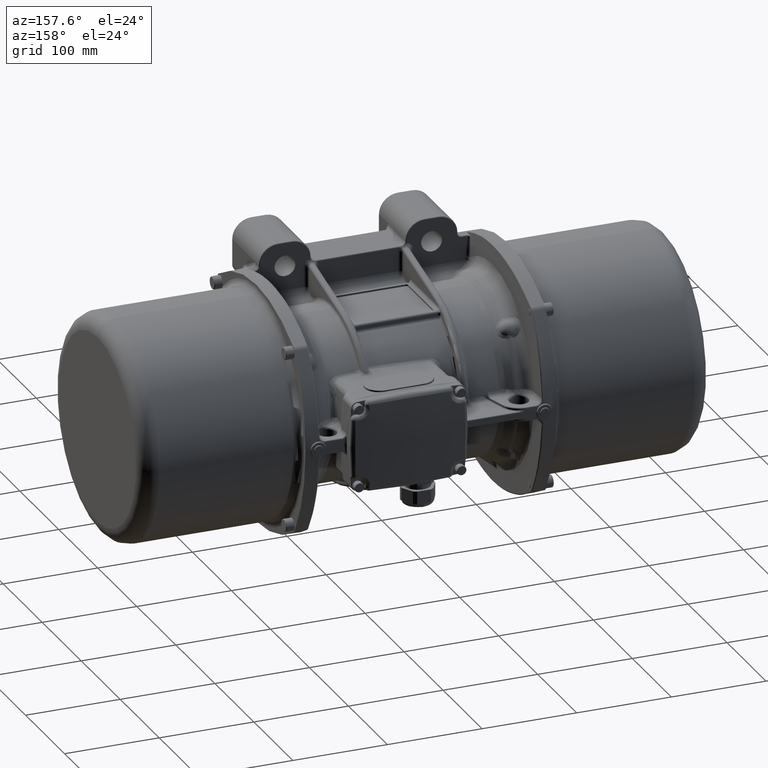
[diagram: clean part render]
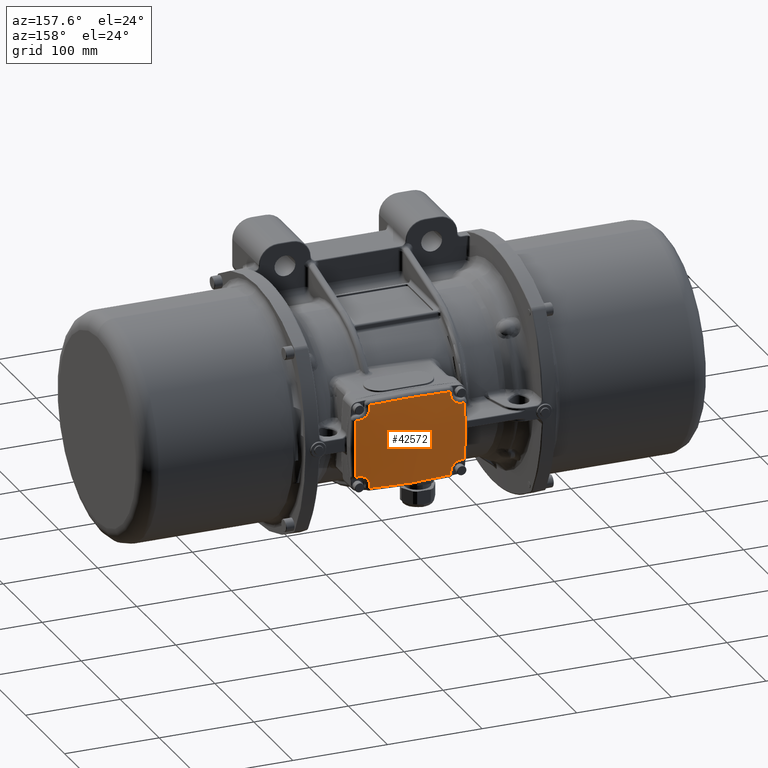
[diagram: same view with one face highlighted and labeled with its STEP entity id]
A machine part, auxiliary view. The second image highlights one B-rep face of the part: STEP entity #42572.
In plain terms, the highlighted face is a freeform B-spline surface patch.
Its self-contained STEP definition (entity closure, byte-faithful):
#1090 = CARTESIAN_POINT ( 'NONE',  ( 73.03838904859841800, 140.2037965762747800, -34.05170469325268800 ) ) ;
#1297 = CARTESIAN_POINT ( 'NONE',  ( 85.68355796375533400, 140.0805562841767100, -8.788626689223152200 ) ) ;
#1487 = B_SPLINE_CURVE_WITH_KNOTS ( 'NONE', 3,
 ( #110804, #30832, #86555, #86055, #131299, #120866 ),
 .UNSPECIFIED., .F., .F.,
 ( 4, 2, 4 ),
 ( 0.0000000000000000000, 0.5000000000000000000, 1.000000000000000000 ),
 .UNSPECIFIED. ) ;
#2481 = CARTESIAN_POINT ( 'NONE',  ( -15.80098126488393700, 140.1579850047789100, -37.95820585746592000 ) ) ;
#2756 = CARTESIAN_POINT ( 'NONE',  ( 85.76013078117621500, 140.1123290917668100, -0.03433041169761991100 ) ) ;
#3235 = CARTESIAN_POINT ( 'NONE',  ( 85.76117192795932500, 140.1127468494036100, 2.331891089218814700 ) ) ;
#4633 = CARTESIAN_POINT ( 'NONE',  ( 71.36146692850643100, 140.1888856636690300, 36.56007688958355600 ) ) ;
#4989 = CARTESIAN_POINT ( 'NONE',  ( 70.18973263400020800, 140.0223227000046200, -41.68482550000020100 ) ) ;
#5131 = CARTESIAN_POINT ( 'NONE',  ( 78.02888587741952600, 140.0558416957679000, 30.73962110632014300 ) ) ;
#7294 = CARTESIAN_POINT ( 'NONE',  ( 70.18970175622136800, 139.9794459508754000, -42.61075927379555100 ) ) ;
#7507 = CIRCLE ( 'NONE', #42358, 899.4965945855613000 ) ;
#8100 = CARTESIAN_POINT ( 'NONE',  ( -18.03835192232527600, 140.2037971372662900, 34.05174674389732600 ) ) ;
#9048 = CARTESIAN_POINT ( 'NONE',  ( -19.10490507970405700, 140.1888088693053500, 32.98485351912680800 ) ) ;
#9646 = CARTESIAN_POINT ( 'NONE',  ( -15.18973541417200000, 140.0223226999723900, 41.68482763699870500 ) ) ;
#9797 = CARTESIAN_POINT ( 'NONE',  ( -30.76019499328634800, 140.1123256498623800, -0.7175420265384963000 ) ) ;
#10793 = CARTESIAN_POINT ( 'NONE',  ( -30.06350219383276500, 139.8210757524552400, 25.11107674537006700 ) ) ;
#11773 = CARTESIAN_POINT ( 'NONE',  ( -30.49912549658229800, 140.0032903239625700, -15.06025973047050000 ) ) ;
#11863 = DIRECTION ( 'NONE',  ( -0.9999999999999997800, -3.117769847139052300E-013, 2.300745983480335900E-008 ) ) ;
#11987 = CARTESIAN_POINT ( 'NONE',  ( 79.85236985144487700, 139.9666296573888900, -30.28823940202165900 ) ) ;
#12669 = CARTESIAN_POINT ( 'NONE',  ( 85.76013463420238700, 140.1123294013266600, -0.0007010029472015470600 ) ) ;
#12738 = CARTESIAN_POINT ( 'NONE',  ( -30.50093468737462000, 140.0040467198113800, -15.00799043343167000 ) ) ;
#13166 = CARTESIAN_POINT ( 'NONE',  ( 85.76010516828907300, 140.1123223515053000, -0.1373208510173062900 ) ) ;
#13695 = B_SPLINE_CURVE_WITH_KNOTS ( 'NONE', 3,
 ( #93609, #104524, #69260, #115970 ),
 .UNSPECIFIED., .F., .F.,
 ( 4, 4 ),
 ( 0.0000000000000000000, 1.000000000000000000 ),
 .UNSPECIFIED. ) ;
#14273 = CARTESIAN_POINT ( 'NONE',  ( 55.96065566999010300, 140.5249769485937700, -45.29115661843946600 ) ) ;
#14648 = CARTESIAN_POINT ( 'NONE',  ( 85.50697881213923800, 140.0065748092918100, 14.83215066699380800 ) ) ;
#14782 = CARTESIAN_POINT ( 'NONE',  ( 13.26932056593490300, 140.8415902245682800, -45.70296511460249200 ) ) ;
#14874 = CARTESIAN_POINT ( 'NONE',  ( -22.67368734587941900, 140.0714077311849900, -30.86673935067014800 ) ) ;
#15084 = CARTESIAN_POINT ( 'NONE',  ( 75.95933894215285400, 140.1383563290189900, 31.65669810655143100 ) ) ;
#15360 = CARTESIAN_POINT ( 'NONE',  ( -18.04399347036988000, 140.2037529715276500, -34.04534656295857800 ) ) ;
#16042 = CARTESIAN_POINT ( 'NONE',  ( 77.67368787152582900, 140.0714075948931500, 30.86674011879623000 ) ) ;
#16510 = CARTESIAN_POINT ( 'NONE',  ( -26.36143164920090200, 139.8826281446757200, 30.13361767267387500 ) ) ;
#16918 = VERTEX_POINT ( 'NONE', #82936 ) ;
#16995 = CARTESIAN_POINT ( 'NONE',  ( 80.22862267742641500, 139.9476240975791700, 30.20762817191744500 ) ) ;
#17446 = CARTESIAN_POINT ( 'NONE',  ( 81.74107202199890300, 139.8596935419816100, -30.13360898899934900 ) ) ;
#20486 = EDGE_CURVE ( 'NONE', #103346, #39128, #1487, .T. ) ;
#21725 = CARTESIAN_POINT ( 'NONE',  ( -30.75886445767078200, 140.1118382432453000, 1.098568551360883200 ) ) ;
#21743 = CIRCLE ( 'NONE', #140696, 899.4965945802382500 ) ;
#21859 = FACE_OUTER_BOUND ( 'NONE', #57701, .T. ) ;
#22223 = CARTESIAN_POINT ( 'NONE',  ( -30.24322727762885800, 139.8962519009069800, -21.34225288614067400 ) ) ;
#23429 = CARTESIAN_POINT ( 'NONE',  ( 79.66337309044992300, 139.9765161427145900, -30.32127468440195600 ) ) ;
#23705 = CARTESIAN_POINT ( 'NONE',  ( -29.71513515116319900, 139.6750815051648000, -30.13360642510929900 ) ) ;
#24127 = CARTESIAN_POINT ( 'NONE',  ( 84.96748077368160100, 139.7808082277453800, 26.36452433803086100 ) ) ;
#24303 = VERTEX_POINT ( 'NONE', #108487 ) ;
#24526 = ORIENTED_EDGE ( 'NONE', *, *, #34338, .T. ) ;
#24543 = EDGE_CURVE ( 'NONE', #85562, #126768, #21743, .T. ) ;
#24544 = CARTESIAN_POINT ( 'NONE',  ( 70.20871099349095300, 140.0563541254272500, 40.92524499875205600 ) ) ;
#24602 = CARTESIAN_POINT ( 'NONE',  ( 85.58092308018773100, 140.0374842658673300, 12.48845241911033500 ) ) ;
#25011 = ORIENTED_EDGE ( 'NONE', *, *, #20486, .F. ) ;
#25095 = CARTESIAN_POINT ( 'NONE',  ( 85.76013380074962800, 140.1123294055756500, -0.009808883010393558400 ) ) ;
#25224 = CARTESIAN_POINT ( 'NONE',  ( -15.18973745369200000, 139.8894073124668000, -44.46231983852969400 ) ) ;
#25553 = ORIENTED_EDGE ( 'NONE', *, *, #52515, .T. ) ;
#25611 = CARTESIAN_POINT ( 'NONE',  ( 85.76013302505124600, 140.1123293660190800, -0.01716534142698154100 ) ) ;
#27674 = CARTESIAN_POINT ( 'NONE',  ( -15.18990427760431800, 139.9351312085906000, -43.53659161360555900 ) ) ;
#27958 = CARTESIAN_POINT ( 'NONE',  ( -23.73176789731455100, 140.0241588265789100, 30.50749183812837400 ) ) ;
#29603 = CIRCLE ( 'NONE', #103457, 899.4965945855683500 ) ;
#29797 = EDGE_CURVE ( 'NONE', #91701, #51240, #70490, .T. ) ;
#30832 = CARTESIAN_POINT ( 'NONE',  ( 55.95958898023012300, 140.5250892150679400, 45.28991351389488100 ) ) ;
#31403 = CARTESIAN_POINT ( 'NONE',  ( -15.56009837823888000, 140.1388740120710000, 38.68488840228309300 ) ) ;
#31450 = CARTESIAN_POINT ( 'NONE',  ( 86.45569444700004200, 140.4635879899999200, 15.43037571199999600 ) ) ;
#32680 = CARTESIAN_POINT ( 'NONE',  ( -30.76013356115836900, 140.1123290917677500, 0.03433254854760702700 ) ) ;
#32905 = CARTESIAN_POINT ( 'NONE',  ( 47.16183110800002300, 143.0419863030001000, -15.43037538399999600 ) ) ;
#34338 = EDGE_CURVE ( 'NONE', #85572, #96415, #29603, .T. ) ;
#34863 = CARTESIAN_POINT ( 'NONE',  ( 76.61933563652199600, 140.1148340180044700, -31.30384278563926900 ) ) ;
#35555 = CARTESIAN_POINT ( 'NONE',  ( 85.74081947704343100, 140.1044001534784500, -4.394285627820708300 ) ) ;
#35835 = CARTESIAN_POINT ( 'NONE',  ( 78.73177867860333400, 140.0241581329884800, -30.50748699114730700 ) ) ;
#35974 = ORIENTED_EDGE ( 'NONE', *, *, #144526, .T. ) ;
#36057 = CARTESIAN_POINT ( 'NONE',  ( 85.38284218470936100, 139.9546749811318900, 18.41339403271805300 ) ) ;
#36073 = ORIENTED_EDGE ( 'NONE', *, *, #93177, .T. ) ;
#36412 = ORIENTED_EDGE ( 'NONE', *, *, #140549, .F. ) ;
#36655 = CARTESIAN_POINT ( 'NONE',  ( 70.18973263712639700, 139.8894073120659700, -44.46232180196715000 ) ) ;
#36687 = B_SPLINE_CURVE_WITH_KNOTS ( 'NONE', 3,
 ( #95847, #27674, #142064, #40105 ),
 .UNSPECIFIED., .F., .F.,
 ( 4, 4 ),
 ( 0.0000000000000000000, 1.000000000000000000 ),
 .UNSPECIFIED. ) ;
#37039 = CARTESIAN_POINT ( 'NONE',  ( 85.50006048236977600, 140.0036823903173800, 15.03318474552207500 ) ) ;
#37732 = CARTESIAN_POINT ( 'NONE',  ( -25.98053971379581000, 139.9056382803992200, -30.13361936960716400 ) ) ;
#38221 = CARTESIAN_POINT ( 'NONE',  ( -15.92867835067446700, 140.1667518492244300, -37.60236149639631300 ) ) ;
#38632 = EDGE_CURVE ( 'NONE', #24303, #102320, #119663, .T. ) ;
#39128 = VERTEX_POINT ( 'NONE', #65677 ) ;
#39411 = CARTESIAN_POINT ( 'NONE',  ( 76.62339715944935400, 140.1147002022329400, 31.30144217740624100 ) ) ;
#40105 = CARTESIAN_POINT ( 'NONE',  ( -15.18973733199709900, 140.0223226999388000, -41.68482353599720400 ) ) ;
#42358 = AXIS2_PLACEMENT_3D ( 'NONE', #88163, #75725, #121984 ) ;
#42572 = ADVANCED_FACE ( 'NONE', ( #21859 ), #125068, .F. ) ;
#42618 = CARTESIAN_POINT ( 'NONE',  ( -30.68356074125903300, 140.0805562842109600, 8.788628821888719900 ) ) ;
#43289 = CARTESIAN_POINT ( 'NONE',  ( -15.19000678898042300, 140.0576144838139200, 40.92244053043987200 ) ) ;
#43818 = CARTESIAN_POINT ( 'NONE',  ( 7.783464245000005600, 143.0407909959999700, -15.43037447800000800 ) ) ;
#44060 = CARTESIAN_POINT ( 'NONE',  ( -30.53027296736182400, 140.0163119867586700, -14.13740063122574500 ) ) ;
#44298 = CARTESIAN_POINT ( 'NONE',  ( -31.29758050299999200, 138.8884181800000900, 46.25035404899999500 ) ) ;
#44771 = CARTESIAN_POINT ( 'NONE',  ( 27.49999929943625100, -758.0000001414670100, 30.13360997419730200 ) ) ;
#45554 = CARTESIAN_POINT ( 'NONE',  ( -30.50698159967094400, 140.0065748125007000, -14.83214830994452200 ) ) ;
#46253 = CARTESIAN_POINT ( 'NONE',  ( 75.95572326671455700, 140.1384573874990700, -31.65940273927742200 ) ) ;
#46414 = EDGE_CURVE ( 'NONE', #103346, #137295, #13695, .T. ) ;
#46871 = CARTESIAN_POINT ( 'NONE',  ( 70.18987260032861300, 140.0399371016230200, 41.30430969455057500 ) ) ;
#46941 = CARTESIAN_POINT ( 'NONE',  ( 85.76012455777092200, 140.1123278154448100, -0.06866055476676154200 ) ) ;
#47363 = CARTESIAN_POINT ( 'NONE',  ( 70.28379409476555400, 140.0867974082613900, 40.17001984396207300 ) ) ;
#48145 = CARTESIAN_POINT ( 'NONE',  ( -25.22862545816077800, 139.9476240976003400, -30.20762603533867400 ) ) ;
#48364 = CARTESIAN_POINT ( 'NONE',  ( 70.80098826438629100, 140.1579857306473100, 37.95817959892057300 ) ) ;
#48427 = CARTESIAN_POINT ( 'NONE',  ( 85.75979443046900000, 140.1122080485201300, -0.5492829117615816200 ) ) ;
#48646 = CARTESIAN_POINT ( 'NONE',  ( -15.18973733199709900, 140.0223226999388000, -41.68482353599720400 ) ) ;
#48920 = CARTESIAN_POINT ( 'NONE',  ( 85.76003861823105000, 140.1122997782394200, -0.2746414839739587100 ) ) ;
#49139 = CARTESIAN_POINT ( 'NONE',  ( -26.74107618899280000, 139.8596935418806000, -30.13360649399599800 ) ) ;
#49202 = CARTESIAN_POINT ( 'NONE',  ( 70.26412229821284000, 140.0879758124738100, -40.16995467371185000 ) ) ;
#49629 = CARTESIAN_POINT ( 'NONE',  ( -19.69291226769897900, 140.1756548422862100, -32.50249761411004100 ) ) ;
#50058 = ORIENTED_EDGE ( 'NONE', *, *, #29797, .T. ) ;
#50164 = CARTESIAN_POINT ( 'NONE',  ( 71.35908832267533300, 140.1888427198484500, -36.56411038661598000 ) ) ;
#50312 = CARTESIAN_POINT ( 'NONE',  ( 74.69289165203603900, 140.1756553676199800, 32.50251166075191400 ) ) ;
#50358 = EDGE_CURVE ( 'NONE', #85572, #126768, #92258, .T. ) ;
#50826 = CARTESIAN_POINT ( 'NONE',  ( -21.61930927181668200, 140.1148352180233900, 31.30385701352966200 ) ) ;
#51240 = VERTEX_POINT ( 'NONE', #72471 ) ;
#51286 = CIRCLE ( 'NONE', #56975, 899.4965945802501900 ) ;
#51989 = CARTESIAN_POINT ( 'NONE',  ( 70.18973263400020800, 140.0223227000046200, -41.68482550000020100 ) ) ;
#52296 = CARTESIAN_POINT ( 'NONE',  ( -25.79369438662495600, 139.9156229370846600, 30.16173632352805400 ) ) ;
#52515 = EDGE_CURVE ( 'NONE', #24303, #91701, #36687, .T. ) ;
#53319 = B_SPLINE_CURVE_WITH_KNOTS ( 'NONE', 3,
 ( #141377, #16510, #52296, #131883, #73244, #96134, #27958, #73734, #50826, #98594, #64231, #9048, #8100, #134301, #77118, #77585, #87647, #31403, #100503, #43289, #65201 ),
 .UNSPECIFIED., .F., .F.,
 ( 4, 1, 2, 2, 2, 2, 2, 2, 2, 2, 4 ),
 ( 0.0000000000000000000, 0.06250000000000120700, 0.09375000000000149900, 0.1250000000000018000, 0.2500000000000015500, 0.3750000000000012800, 0.5000000000000010000, 0.6250000000000007800, 0.7500000000000004400, 0.8750000000000002200, 1.000000000000000000 ),
 .UNSPECIFIED. ) ;
#54267 = CARTESIAN_POINT ( 'NONE',  ( 86.45569373799997900, 140.4635879899999200, -15.43037628800000500 ) ) ;
#54523 = CARTESIAN_POINT ( 'NONE',  ( -30.64278098048701800, 140.0633306997373800, -10.13429648487398700 ) ) ;
#56975 = AXIS2_PLACEMENT_3D ( 'NONE', #119424, #95588, #142315 ) ;
#57351 = CARTESIAN_POINT ( 'NONE',  ( -15.18973541790655100, 139.8894073120481800, 44.46232393808945500 ) ) ;
#57643 = ORIENTED_EDGE ( 'NONE', *, *, #50358, .F. ) ;
#57701 = EDGE_LOOP ( 'NONE', ( #25011, #112556, #128751, #63702, #57643, #24526, #101606, #35974, #129667, #25553, #50058, #82651, #36412, #36073, #131469, #103642 ) ) ;
#57988 = CARTESIAN_POINT ( 'NONE',  ( -29.71513515116319900, 139.6750815051648000, -30.13360642510929900 ) ) ;
#58128 = CARTESIAN_POINT ( 'NONE',  ( -29.71513376491955000, 139.6750815051532000, 30.13361119420449800 ) ) ;
#58412 = CARTESIAN_POINT ( 'NONE',  ( 85.49912271665736800, 140.0032903239340700, 15.06026186517387800 ) ) ;
#58717 = CARTESIAN_POINT ( 'NONE',  ( 84.71513237086949700, 139.6750815051413800, 30.13360856207469900 ) ) ;
#58848 = CARTESIAN_POINT ( 'NONE',  ( 70.34041797244076100, 140.1008885528602300, 39.79196375068882900 ) ) ;
#58905 = CARTESIAN_POINT ( 'NONE',  ( 85.51490087336868800, 140.0098867883060300, 14.59903573443645200 ) ) ;
#59022 = CARTESIAN_POINT ( 'NONE',  ( 41.73067455106829000, 140.8415237065694000, -45.70427079031017600 ) ) ;
#59410 = CARTESIAN_POINT ( 'NONE',  ( 85.49947880925329000, 140.0034392013127700, 15.04998633393131700 ) ) ;
#59523 = CARTESIAN_POINT ( 'NONE',  ( 70.18973468294639400, 139.8894073120976000, 44.46232197419319500 ) ) ;
#59609 = CARTESIAN_POINT ( 'NONE',  ( -24.11371893029707200, 140.0046806704027900, -30.42962256935605600 ) ) ;
#59678 = CARTESIAN_POINT ( 'NONE',  ( 81.74107202199890300, 139.8596935419816100, -30.13360898899934900 ) ) ;
#59892 = CARTESIAN_POINT ( 'NONE',  ( 85.55915970460321800, 140.0283883604226100, 13.23253045751331800 ) ) ;
#60596 = CARTESIAN_POINT ( 'NONE',  ( -23.74946965737370500, 140.0224492053365600, -30.52094870375610500 ) ) ;
#62563 = VERTEX_POINT ( 'NONE', #58128 ) ;
#62764 = CARTESIAN_POINT ( 'NONE',  ( 79.11371615065979800, 140.0046806703369100, 30.42962470562268300 ) ) ;
#63702 = ORIENTED_EDGE ( 'NONE', *, *, #24543, .T. ) ;
#64231 = CARTESIAN_POINT ( 'NONE',  ( -19.68737381042856100, 140.1757705933236500, 32.50738725272895400 ) ) ;
#65201 = CARTESIAN_POINT ( 'NONE',  ( -15.18973541417200000, 140.0223226999723900, 41.68482763699870500 ) ) ;
#65677 = CARTESIAN_POINT ( 'NONE',  ( -15.18973541790655100, 139.8894073120481800, 44.46232393808945500 ) ) ;
#65985 = CARTESIAN_POINT ( 'NONE',  ( -30.58092592616149800, 140.0374842935050000, -12.48844800075089300 ) ) ;
#66541 = CARTESIAN_POINT ( 'NONE',  ( 81.74107340899890100, 139.8596935419809900, 30.13360862999940100 ) ) ;
#67197 = CARTESIAN_POINT ( 'NONE',  ( -31.51024178100004000, 140.4600072039999600, -15.43037357400001000 ) ) ;
#67457 = CARTESIAN_POINT ( 'NONE',  ( -30.75979721019263000, 140.1122080485340900, 0.5492850482448077300 ) ) ;
#69260 = CARTESIAN_POINT ( 'NONE',  ( 70.18970371689087500, 139.9794459508667900, 42.61075944646189800 ) ) ;
#69438 = CARTESIAN_POINT ( 'NONE',  ( -30.38284500521881900, 139.9546749981242900, -18.41339072839340900 ) ) ;
#70490 = B_SPLINE_CURVE_WITH_KNOTS ( 'NONE', 3,
 ( #48646, #116805, #139661, #105370, #106324, #83485, #70578, #2481, #38221, #116308, #94451, #140655, #15360, #93450, #49629, #129225, #95422, #14874, #72545, #60596, #59609, #48145, #37732, #49139 ),
 .UNSPECIFIED., .F., .F.,
 ( 4, 2, 2, 2, 2, 2, 2, 2, 2, 2, 2, 4 ),
 ( 0.0000000000000000000, 0.06249999999999990300, 0.1249999999999998100, 0.1874999999999997200, 0.2499999999999996100, 0.3749999999999996100, 0.4999999999999996700, 0.6249999999999996700, 0.7499999999999996700, 0.8124999999999998900, 0.8750000000000000000, 1.000000000000000000 ),
 .UNSPECIFIED. ) ;
#70578 = CARTESIAN_POINT ( 'NONE',  ( -15.58166834119941800, 140.1378266089153900, -38.67960864650865500 ) ) ;
#70856 = CARTESIAN_POINT ( 'NONE',  ( 85.75521845747644500, 140.1103531442535100, -2.197136017222046900 ) ) ;
#71352 = CARTESIAN_POINT ( 'NONE',  ( 85.64277810493922500, 140.0633306597507900, 10.13430267765302900 ) ) ;
#72471 = CARTESIAN_POINT ( 'NONE',  ( -26.74107618899280000, 139.8596935418806000, -30.13360649399599800 ) ) ;
#72545 = CARTESIAN_POINT ( 'NONE',  ( -23.02888169797521200, 140.0558420169433000, -30.73962102213118200 ) ) ;
#72602 = CARTESIAN_POINT ( 'NONE',  ( 70.56009257068956200, 140.1388734999868300, -38.68490126191046800 ) ) ;
#73244 = CARTESIAN_POINT ( 'NONE',  ( -24.85237239847158400, 139.9666296709625000, 30.28824153899803300 ) ) ;
#73734 = CARTESIAN_POINT ( 'NONE',  ( -23.00875904318408500, 140.0576292199899900, 30.72735102347000700 ) ) ;
#75388 = CARTESIAN_POINT ( 'NONE',  ( 70.18973263712639700, 139.8894073120659700, -44.46232180196715000 ) ) ;
#75725 = DIRECTION ( 'NONE',  ( 2.300745996898514400E-008, -1.091030831949025800E-010, 0.9999999999999997800 ) ) ;
#76940 = CARTESIAN_POINT ( 'NONE',  ( -30.76013741420236200, 140.1123294013266300, 0.0007031358616494345500 ) ) ;
#77118 = CARTESIAN_POINT ( 'NONE',  ( -16.71468619868046800, 140.1981399490003400, 35.89993765503901800 ) ) ;
#77155 = CARTESIAN_POINT ( 'NONE',  ( -31.29758263099995500, 138.8884181800000900, -46.25034920700002800 ) ) ;
#77585 = CARTESIAN_POINT ( 'NONE',  ( -16.35910426816420900, 140.1888433947895600, 36.56408078662927600 ) ) ;
#77687 = CARTESIAN_POINT ( 'NONE',  ( -15.18973733199709900, 140.0223226999388000, -41.68482353599720400 ) ) ;
#77887 = CARTESIAN_POINT ( 'NONE',  ( -30.55916253617615300, 140.0283883820426900, -13.23252665703078000 ) ) ;
#78131 = CARTESIAN_POINT ( 'NONE',  ( 47.23656541499998700, 141.4563186350001400, 46.25035224200001200 ) ) ;
#78401 = CARTESIAN_POINT ( 'NONE',  ( -29.71513376491955000, 139.6750815051532000, 30.13361119420449800 ) ) ;
#78646 = CARTESIAN_POINT ( 'NONE',  ( 7.927390722000003700, 141.4599013970001000, -46.25035010899999600 ) ) ;
#79804 = EDGE_CURVE ( 'NONE', #51240, #93503, #7507, .T. ) ;
#79950 = CARTESIAN_POINT ( 'NONE',  ( 84.71513098490160600, 139.6750815051320000, -30.13360905789415200 ) ) ;
#80791 = CARTESIAN_POINT ( 'NONE',  ( 85.76019221323869600, 140.1123256498606200, 0.7175482190413627900 ) ) ;
#82651 = ORIENTED_EDGE ( 'NONE', *, *, #79804, .T. ) ;
#82712 = CARTESIAN_POINT ( 'NONE',  ( 70.48955953584219000, 140.1264104405014200, 39.04633996200100700 ) ) ;
#82936 = CARTESIAN_POINT ( 'NONE',  ( -26.74107480299879900, 139.8596935419799900, 30.13361112599934800 ) ) ;
#83485 = CARTESIAN_POINT ( 'NONE',  ( -15.48955851056477200, 140.1264097934892400, -39.04635675350354500 ) ) ;
#84534 = CARTESIAN_POINT ( 'NONE',  ( 70.77885257134769900, 140.1590099956281700, -37.96489028840315400 ) ) ;
#85162 = CARTESIAN_POINT ( 'NONE',  ( 74.11118707349088200, 140.1886850823675800, 32.97932878278889000 ) ) ;
#85562 = VERTEX_POINT ( 'NONE', #66541 ) ;
#85572 = VERTEX_POINT ( 'NONE', #79950 ) ;
#86055 = CARTESIAN_POINT ( 'NONE',  ( 13.26932267124968600, 140.8415237067887300, 45.70427292200856300 ) ) ;
#86555 = CARTESIAN_POINT ( 'NONE',  ( 41.73067665074713500, 140.8415902243616500, 45.70296725565489700 ) ) ;
#87647 = CARTESIAN_POINT ( 'NONE',  ( -15.77884218685492900, 140.1590093206040700, 37.96492416138723800 ) ) ;
#88163 = CARTESIAN_POINT ( 'NONE',  ( 27.49999791331410000, -758.0000001468190500, -30.13360783979460300 ) ) ;
#88434 = CARTESIAN_POINT ( 'NONE',  ( -30.71916107953370900, 140.0952237413734500, -6.098585356090366000 ) ) ;
#88553 = B_SPLINE_CURVE_WITH_KNOTS ( 'NONE', 3,
 ( #51989, #7294, #141556, #75388 ),
 .UNSPECIFIED., .F., .F.,
 ( 4, 4 ),
 ( 0.0000000000000000000, 1.000000000000000000 ),
 .UNSPECIFIED. ) ;
#88659 = CARTESIAN_POINT ( 'NONE',  ( 47.23656328700006000, 141.4563186350001400, -46.25035101299998500 ) ) ;
#89392 = CARTESIAN_POINT ( 'NONE',  ( -30.45507628068732900, 139.9850632423552700, 17.57748001383333400 ) ) ;
#89637 = CARTESIAN_POINT ( 'NONE',  ( 7.783464954999999500, 143.0407909959999700, 15.43037752199999900 ) ) ;
#89886 = CARTESIAN_POINT ( 'NONE',  ( -30.74082225530955300, 140.1044001535413200, 4.394287762061767700 ) ) ;
#91701 = VERTEX_POINT ( 'NONE', #77687 ) ;
#92042 = CARTESIAN_POINT ( 'NONE',  ( 72.56132916958510700, 140.2056805960227500, -34.63324531746926000 ) ) ;
#92258 = B_SPLINE_CURVE_WITH_KNOTS ( 'NONE', 3,
 ( #92259, #116578, #127075, #1297, #35555, #70856, #103670, #48427, #48920, #13166, #46941, #2756, #25611, #25095, #127559, #12669, #80791, #3235, #128523, #92749, #71352, #105147, #24602, #59892, #126579, #58905, #14648, #104161, #128042, #37039, #59410, #58412, #36057, #93728, #24127, #115105, #139453 ),
 .UNSPECIFIED., .F., .F.,
 ( 4, 1, 1, 1, 1, 1, 1, 1, 1, 1, 1, 1, 2, 2, 2, 2, 2, 1, 1, 1, 1, 1, 1, 2, 2, 2, 4 ),
 ( 0.0000000000000000000, 0.2499999999999978900, 0.3749999999999968400, 0.4374999999999963400, 0.4687499999999960600, 0.4843749999999958900, 0.4921874999999958400, 0.4960937499999958400, 0.4980468749999957800, 0.4990234374999957800, 0.4995117187499957800, 0.4997558593749957800, 0.4998779296874957800, 0.4999999999999957800, 0.6249999999999945600, 0.6874999999999938900, 0.7187499999999935600, 0.7343749999999934500, 0.7421874999999934500, 0.7460937499999933400, 0.7480468749999933400, 0.7490234374999933400, 0.7495117187499933400, 0.7497558593749933400, 0.7499999999999933400, 0.8749999999999966700, 1.000000000000000000 ),
 .UNSPECIFIED. ) ;
#92259 = CARTESIAN_POINT ( 'NONE',  ( 84.71513098490160600, 139.6750815051320000, -30.13360905789415200 ) ) ;
#92749 = CARTESIAN_POINT ( 'NONE',  ( 85.69738682517495900, 140.0861391673425900, 7.578359020380591300 ) ) ;
#93177 = EDGE_CURVE ( 'NONE', #62563, #16918, #51286, .T. ) ;
#93450 = CARTESIAN_POINT ( 'NONE',  ( -19.11116526964192600, 140.1886854297024500, -32.97935119705189100 ) ) ;
#93503 = VERTEX_POINT ( 'NONE', #57988 ) ;
#93609 = CARTESIAN_POINT ( 'NONE',  ( 70.18973468294639400, 139.8894073120976000, 44.46232197419319500 ) ) ;
#93666 = CARTESIAN_POINT ( 'NONE',  ( 70.18973455197290400, 140.0223226999421800, 41.68482567299735600 ) ) ;
#93728 = CARTESIAN_POINT ( 'NONE',  ( 85.24322441159665700, 139.8962518648428700, 21.34225677408461800 ) ) ;
#93735 = CARTESIAN_POINT ( 'NONE',  ( 70.18973455197290400, 140.0223226999421800, 41.68482567299735600 ) ) ;
#94285 = B_SPLINE_CURVE_WITH_KNOTS ( 'NONE', 3,
 ( #9646, #135911, #146908, #57351 ),
 .UNSPECIFIED., .F., .F.,
 ( 4, 4 ),
 ( 0.0000000000000000000, 1.000000000000000000 ),
 .UNSPECIFIED. ) ;
#94451 = CARTESIAN_POINT ( 'NONE',  ( -16.71751455900504600, 140.1981537820969900, -35.89612004407101200 ) ) ;
#95422 = CARTESIAN_POINT ( 'NONE',  ( -21.62340655074571700, 140.1146999297128600, -31.30143730566346200 ) ) ;
#95487 = CARTESIAN_POINT ( 'NONE',  ( 70.19000353005616000, 140.0576152009885800, -40.92242339947061700 ) ) ;
#95588 = DIRECTION ( 'NONE',  ( -2.300746846578034300E-008, -1.073281676897365700E-010, -0.9999999999999997800 ) ) ;
#95847 = CARTESIAN_POINT ( 'NONE',  ( -15.18973745369200000, 139.8894073124668000, -44.46231983852969400 ) ) ;
#96134 = CARTESIAN_POINT ( 'NONE',  ( -24.66337926194332700, 139.9765159693046100, 30.32127614382983100 ) ) ;
#96415 = VERTEX_POINT ( 'NONE', #17446 ) ;
#98322 = CARTESIAN_POINT ( 'NONE',  ( 70.18973263400020800, 140.0223227000046200, -41.68482550000020100 ) ) ;
#98594 = CARTESIAN_POINT ( 'NONE',  ( -20.95576205220962900, 140.1384563282439900, 31.65938080515858700 ) ) ;
#99836 = CARTESIAN_POINT ( 'NONE',  ( -30.69738970636353100, 140.0861392096645400, -7.578351306681033100 ) ) ;
#100059 = CARTESIAN_POINT ( 'NONE',  ( 86.46106724199995600, 138.8776852839998800, -46.25035191600002100 ) ) ;
#100503 = CARTESIAN_POINT ( 'NONE',  ( -15.26412205153160100, 140.0879753002446100, 40.16997180720716200 ) ) ;
#100872 = CARTESIAN_POINT ( 'NONE',  ( 27.49999791331444900, -758.0000001468220000, -30.13360783968764900 ) ) ;
#101019 = CARTESIAN_POINT ( 'NONE',  ( 47.16183181800002400, 143.0419863030001000, 15.43037661600001100 ) ) ;
#101606 = ORIENTED_EDGE ( 'NONE', *, *, #125880, .T. ) ;
#101794 = CARTESIAN_POINT ( 'NONE',  ( -30.50296041623115100, 140.0048936418810100, -14.94928060545988300 ) ) ;
#102291 = CARTESIAN_POINT ( 'NONE',  ( -29.96748365996177200, 139.7808082722961000, -26.36452045004133300 ) ) ;
#102320 = VERTEX_POINT ( 'NONE', #105132 ) ;
#102762 = CARTESIAN_POINT ( 'NONE',  ( -30.49948158980586800, 140.0034392016037800, -15.04998418111295200 ) ) ;
#102981 = CARTESIAN_POINT ( 'NONE',  ( 78.00872711747678100, 140.0576304199759400, -30.72736097836440200 ) ) ;
#103346 = VERTEX_POINT ( 'NONE', #59523 ) ;
#103457 = AXIS2_PLACEMENT_3D ( 'NONE', #100872, #135161, #11863 ) ;
#103642 = ORIENTED_EDGE ( 'NONE', *, *, #134939, .T. ) ;
#103670 = CARTESIAN_POINT ( 'NONE',  ( 85.75886167820566200, 140.1118382432193200, -1.098566415251040200 ) ) ;
#103733 = CARTESIAN_POINT ( 'NONE',  ( -30.50006326346872500, 140.0036823908367900, -15.03318257689190300 ) ) ;
#103939 = CARTESIAN_POINT ( 'NONE',  ( 80.79369324465002900, 139.9156228402100300, -30.16173418649807300 ) ) ;
#104023 = EDGE_CURVE ( 'NONE', #16918, #138187, #53319, .T. ) ;
#104161 = CARTESIAN_POINT ( 'NONE',  ( 85.50295763242280600, 140.0048936402286900, 14.94928285290934300 ) ) ;
#104429 = CARTESIAN_POINT ( 'NONE',  ( 80.22855255214803100, 139.9465089513699100, -30.23201568026724600 ) ) ;
#104524 = CARTESIAN_POINT ( 'NONE',  ( 70.18970376056215300, 139.9351406099975700, 43.53659374994574400 ) ) ;
#104760 = CARTESIAN_POINT ( 'NONE',  ( -0.9595917578141651700, 140.5250892144229600, -45.28991137799668100 ) ) ;
#105132 = CARTESIAN_POINT ( 'NONE',  ( 70.18973263712639700, 139.8894073120659700, -44.46232180196715000 ) ) ;
#105147 = CARTESIAN_POINT ( 'NONE',  ( 85.62088390817530100, 140.0541838308996900, 11.04233313691710100 ) ) ;
#105370 = CARTESIAN_POINT ( 'NONE',  ( -15.28379619160474700, 140.0867971661027700, -40.17002386218417300 ) ) ;
#106324 = CARTESIAN_POINT ( 'NONE',  ( -15.34042455771352700, 140.1008891997780100, -39.79194268605368000 ) ) ;
#106527 = CARTESIAN_POINT ( 'NONE',  ( 78.74947561920318200, 140.0224487763379400, 30.52094878804365800 ) ) ;
#107011 = CARTESIAN_POINT ( 'NONE',  ( 71.71748419715433400, 140.1981535391238900, 35.89616338674169100 ) ) ;
#107988 = CARTESIAN_POINT ( 'NONE',  ( 73.04396610651878100, 140.2037533188178900, 34.04537325121601300 ) ) ;
#108487 = CARTESIAN_POINT ( 'NONE',  ( -15.18973745369200000, 139.8894073124668000, -44.46231983852969400 ) ) ;
#110804 = CARTESIAN_POINT ( 'NONE',  ( 70.18973468294639400, 139.8894073120976000, 44.46232197419319500 ) ) ;
#110942 = CARTESIAN_POINT ( 'NONE',  ( 7.927392850000006600, 141.4599013970001000, 46.25035314600000200 ) ) ;
#111192 = CARTESIAN_POINT ( 'NONE',  ( -30.76010794821829800, 140.1123223515089400, 0.1373229877926400700 ) ) ;
#111668 = CARTESIAN_POINT ( 'NONE',  ( -30.75522123647626300, 140.1103531442982700, 2.197138152639240200 ) ) ;
#112174 = CARTESIAN_POINT ( 'NONE',  ( -30.76117474062813900, 140.1127468630346300, -2.331882868693132300 ) ) ;
#112556 = ORIENTED_EDGE ( 'NONE', *, *, #46414, .T. ) ;
#114750 = B_SPLINE_CURVE_WITH_KNOTS ( 'NONE', 3,
 ( #59678, #114890, #103939, #104429, #11987, #23429, #35835, #102981, #34863, #46253, #125879, #137266, #1090, #92042, #137759, #50164, #84534, #72602, #49202, #95487, #4989 ),
 .UNSPECIFIED., .F., .F.,
 ( 4, 1, 2, 2, 2, 2, 2, 2, 2, 2, 4 ),
 ( 0.0000000000000000000, 0.06250000000000284500, 0.09375000000000315000, 0.1250000000000034700, 0.2500000000000031600, 0.3750000000000026600, 0.5000000000000022200, 0.6250000000000016700, 0.7500000000000011100, 0.8750000000000006700, 1.000000000000000000 ),
 .UNSPECIFIED. ) ;
#114890 = CARTESIAN_POINT ( 'NONE',  ( 81.36143014509082100, 139.8826280675428400, -30.13361553565281200 ) ) ;
#115105 = CARTESIAN_POINT ( 'NONE',  ( 84.83135922686328500, 139.7237898901323900, 28.45792922880599500 ) ) ;
#115970 = CARTESIAN_POINT ( 'NONE',  ( 70.18973455197290400, 140.0223226999421800, 41.68482567299735600 ) ) ;
#116308 = CARTESIAN_POINT ( 'NONE',  ( -16.36145430463873000, 140.1888848777972200, -36.56011180319924100 ) ) ;
#116520 = CARTESIAN_POINT ( 'NONE',  ( 70.58167331783931800, 140.1378274569159700, 38.67958238944149200 ) ) ;
#116578 = CARTESIAN_POINT ( 'NONE',  ( 85.06349941373737500, 139.8210757527356800, -25.11107461080360900 ) ) ;
#116805 = CARTESIAN_POINT ( 'NONE',  ( -15.18987562054478400, 140.0399369001643200, -41.30431166043774700 ) ) ;
#117521 = CARTESIAN_POINT ( 'NONE',  ( 81.74107340899890100, 139.8596935419809900, 30.13360862999940100 ) ) ;
#119424 = CARTESIAN_POINT ( 'NONE',  ( 27.49999929943635000, -758.0000001414761100, 30.13360997409434800 ) ) ;
#119471 = CARTESIAN_POINT ( 'NONE',  ( 72.56604508715572900, 140.2056499817146600, 34.62791857780045700 ) ) ;
#119663 = B_SPLINE_CURVE_WITH_KNOTS ( 'NONE', 3,
 ( #25224, #104760, #14782, #59022, #14273, #36655 ),
 .UNSPECIFIED., .F., .F.,
 ( 4, 2, 4 ),
 ( 0.0000000000000000000, 0.5000000000000000000, 1.000000000000000000 ),
 .UNSPECIFIED. ) ;
#120535 = B_SPLINE_CURVE_WITH_KNOTS ( 'NONE', 3,
 ( #78401, #10793, #89392, #42618, #89886, #111668, #21725, #67457, #134577, #111192, #146047, #32680, #145080, #122253, #133638, #76940, #9797, #112174, #88434, #99836, #54523, #134112, #65985, #77887, #44060, #123702, #45554, #101794, #12738, #103733, #102762, #11773, #69438, #22223, #102291, #137544, #23705 ),
 .UNSPECIFIED., .F., .F.,
 ( 4, 1, 1, 1, 1, 1, 1, 1, 1, 1, 1, 1, 2, 2, 2, 2, 2, 1, 1, 1, 1, 1, 1, 2, 2, 2, 4 ),
 ( 0.0000000000000000000, 0.2500000000000082200, 0.3750000000000123200, 0.4375000000000143800, 0.4687500000000154300, 0.4843750000000159300, 0.4921875000000161500, 0.4960937500000163200, 0.4980468750000163800, 0.4990234375000163800, 0.4995117187500164300, 0.4997558593750164300, 0.4998779296875164300, 0.5000000000000164300, 0.6250000000000205400, 0.6875000000000226500, 0.7187500000000236500, 0.7343750000000240900, 0.7421875000000244200, 0.7460937500000245400, 0.7480468750000245400, 0.7490234375000246500, 0.7495117187500246500, 0.7497558593750246500, 0.7500000000000246500, 0.8750000000000123200, 1.000000000000000000 ),
 .UNSPECIFIED. ) ;
#120866 = CARTESIAN_POINT ( 'NONE',  ( -15.18973541790655100, 139.8894073120481800, 44.46232393808945500 ) ) ;
#121984 = DIRECTION ( 'NONE',  ( -0.9999999999999997800, -6.394760719725872900E-013, 2.300745996980198800E-008 ) ) ;
#122253 = CARTESIAN_POINT ( 'NONE',  ( -30.76013658074454300, 140.1123294055758200, 0.009811019878259568200 ) ) ;
#123702 = CARTESIAN_POINT ( 'NONE',  ( -30.51490366810752200, 140.0098867945283700, -14.59903316078649600 ) ) ;
#123947 = CARTESIAN_POINT ( 'NONE',  ( 86.46106937000001800, 138.8776852839998800, 46.25035133999999500 ) ) ;
#124410 = DIRECTION ( 'NONE',  ( -2.300746837729304400E-008, -1.073254750839359700E-010, -0.9999999999999997800 ) ) ;
#125068 =( BOUNDED_SURFACE ( )  B_SPLINE_SURFACE ( 3, 3, ( 
 ( #44298, #110942, #78131, #123947 ),
 ( #145321, #89637, #101019, #31450 ),
 ( #67197, #43818, #32905, #54267 ),
 ( #77155, #78646, #88659, #100059 ) ),
 .UNSPECIFIED., .F., .F., .T. ) 
 B_SPLINE_SURFACE_WITH_KNOTS ( ( 4, 4 ),
 ( 4, 4 ),
 ( 0.4871136094752260300, 0.5128863905247750300 ),
 ( 0.0000000000000000000, 1.000000000000000000 ),
 .UNSPECIFIED. ) 
 GEOMETRIC_REPRESENTATION_ITEM ( )  RATIONAL_B_SPLINE_SURFACE ( (
 ( 0.5015191598161620200, 0.5008010030315379600, 0.5008010030315379600, 0.5015191598161620200),
 ( 0.5010773876544070100, 0.5003598634710889600, 0.5003598634710889600, 0.5010773876544070100),
 ( 0.5010773876544070100, 0.5003598634710889600, 0.5003598634710889600, 0.5010773876544070100),
 ( 0.5015191598161620200, 0.5008010030315379600, 0.5008010030315379600, 0.5015191598161620200) ) ) 
 REPRESENTATION_ITEM ( '' )  SURFACE ( )  );
#125879 = CARTESIAN_POINT ( 'NONE',  ( 74.68740703579614100, 140.1757695340220700, -32.50736104548368400 ) ) ;
#125880 = EDGE_CURVE ( 'NONE', #96415, #143543, #114750, .T. ) ;
#126579 = CARTESIAN_POINT ( 'NONE',  ( 85.53027015914710800, 140.0163119749024600, 14.13740362768122300 ) ) ;
#126768 = VERTEX_POINT ( 'NONE', #58717 ) ;
#127075 = CARTESIAN_POINT ( 'NONE',  ( 85.45507350255252300, 139.9850632425357700, -17.57747788168934000 ) ) ;
#127559 = CARTESIAN_POINT ( 'NONE',  ( 85.76013427655698300, 140.1123294146177900, -0.004904577459519929300 ) ) ;
#128042 = CARTESIAN_POINT ( 'NONE',  ( 85.50093190545834400, 140.0040467189503200, 15.00799262575637600 ) ) ;
#128160 = CARTESIAN_POINT ( 'NONE',  ( -15.18973541417200000, 140.0223226999723900, 41.68482763699870500 ) ) ;
#128523 = CARTESIAN_POINT ( 'NONE',  ( 85.71915821418450300, 140.0952237056893100, 6.098593576738374500 ) ) ;
#128751 = ORIENTED_EDGE ( 'NONE', *, *, #138451, .T. ) ;
#129225 = CARTESIAN_POINT ( 'NONE',  ( -20.95932388649218200, 140.1383568543951700, -31.65670788019751200 ) ) ;
#129428 = CARTESIAN_POINT ( 'NONE',  ( 80.98053942482320600, 139.9056381298475700, 30.13362150606150200 ) ) ;
#129667 = ORIENTED_EDGE ( 'NONE', *, *, #38632, .F. ) ;
#131299 = CARTESIAN_POINT ( 'NONE',  ( -0.9606584464374929900, 140.5249769499631000, 45.29115874438240000 ) ) ;
#131469 = ORIENTED_EDGE ( 'NONE', *, *, #104023, .T. ) ;
#131883 = CARTESIAN_POINT ( 'NONE',  ( -25.22855457933054200, 139.9465089955688200, 30.23201781726963200 ) ) ;
#133638 = CARTESIAN_POINT ( 'NONE',  ( -30.76013705655445900, 140.1123294146178500, 0.004906714330964462800 ) ) ;
#134112 = CARTESIAN_POINT ( 'NONE',  ( -30.62088677679536300, 140.0541838679973200, -11.04232757786038900 ) ) ;
#134301 = CARTESIAN_POINT ( 'NONE',  ( -17.56135826989751400, 140.2056808297419600, 34.63320809343977700 ) ) ;
#134577 = CARTESIAN_POINT ( 'NONE',  ( -30.76004139809067100, 140.1122997782464700, 0.2746436206507602600 ) ) ;
#134939 = EDGE_CURVE ( 'NONE', #138187, #39128, #94285, .T. ) ;
#135161 = DIRECTION ( 'NONE',  ( 2.300745983627999300E-008, -1.091064489512223700E-010, 0.9999999999999997800 ) ) ;
#135911 = CARTESIAN_POINT ( 'NONE',  ( -15.18990227374841100, 139.9794365508658100, 42.61076141046264400 ) ) ;
#137266 = CARTESIAN_POINT ( 'NONE',  ( 74.10486239343141800, 140.1888094303069700, -32.98489129576762500 ) ) ;
#137295 = VERTEX_POINT ( 'NONE', #93735 ) ;
#137544 = CARTESIAN_POINT ( 'NONE',  ( -29.83136208785667900, 139.7237899240920500, -28.45792592441162600 ) ) ;
#137759 = CARTESIAN_POINT ( 'NONE',  ( 71.71470973886860600, 140.1981401827343100, -35.89989615788620400 ) ) ;
#138187 = VERTEX_POINT ( 'NONE', #128160 ) ;
#138402 = CARTESIAN_POINT ( 'NONE',  ( 70.92866786874304800, 140.1667514563365000, 37.60238215795504900 ) ) ;
#138451 = EDGE_CURVE ( 'NONE', #137295, #85562, #139713, .T. ) ;
#139453 = CARTESIAN_POINT ( 'NONE',  ( 84.71513237086949700, 139.6750815051413800, 30.13360856207469900 ) ) ;
#139661 = CARTESIAN_POINT ( 'NONE',  ( -15.20871361116061700, 140.0563538532871600, -40.92524901647916400 ) ) ;
#139713 = B_SPLINE_CURVE_WITH_KNOTS ( 'NONE', 3,
 ( #93666, #46871, #24544, #47363, #58848, #82712, #116520, #48364, #138402, #4633, #107011, #119471, #107988, #85162, #50312, #15084, #39411, #16042, #5131, #106527, #62764, #16995, #129428, #117521 ),
 .UNSPECIFIED., .F., .F.,
 ( 4, 2, 2, 2, 2, 2, 2, 2, 2, 2, 2, 4 ),
 ( 0.0000000000000000000, 0.06250000000000015300, 0.1250000000000003100, 0.1875000000000004400, 0.2500000000000006100, 0.3750000000000008900, 0.5000000000000012200, 0.6250000000000015500, 0.7500000000000017800, 0.8125000000000007800, 0.8749999999999996700, 1.000000000000000000 ),
 .UNSPECIFIED. ) ;
#140549 = EDGE_CURVE ( 'NONE', #62563, #93503, #120535, .T. ) ;
#140655 = CARTESIAN_POINT ( 'NONE',  ( -17.56602028530521100, 140.2056497387478700, -34.62795764659715300 ) ) ;
#140696 = AXIS2_PLACEMENT_3D ( 'NONE', #44771, #124410, #147278 ) ;
#141377 = CARTESIAN_POINT ( 'NONE',  ( -26.74107480299879900, 139.8596935419799900, 30.13361112599934800 ) ) ;
#141556 = CARTESIAN_POINT ( 'NONE',  ( 70.18970175722525100, 139.9351406099923500, -43.53659357761237900 ) ) ;
#142064 = CARTESIAN_POINT ( 'NONE',  ( -15.18990423408660300, 139.9794365508675500, -42.61075730978875200 ) ) ;
#142315 = DIRECTION ( 'NONE',  ( 0.9999999999999997800, -9.343435369351609100E-013, -2.300746846712579900E-008 ) ) ;
#143543 = VERTEX_POINT ( 'NONE', #98322 ) ;
#144526 = EDGE_CURVE ( 'NONE', #143543, #102320, #88553, .T. ) ;
#145080 = CARTESIAN_POINT ( 'NONE',  ( -30.76013580504234200, 140.1123293660195700, 0.01716747828948285800 ) ) ;
#145321 = CARTESIAN_POINT ( 'NONE',  ( -31.51024107100003100, 140.4600072039999600, 15.43037842600000100 ) ) ;
#146047 = CARTESIAN_POINT ( 'NONE',  ( -30.76012733773541500, 140.1123278154466900, 0.06866269159179071200 ) ) ;
#146908 = CARTESIAN_POINT ( 'NONE',  ( -15.18990227493286600, 139.9351312085923100, 43.53659571394545200 ) ) ;
#147278 = DIRECTION ( 'NONE',  ( 0.9999999999999997800, -6.394760719763716000E-013, -2.300746837841283800E-008 ) ) ;